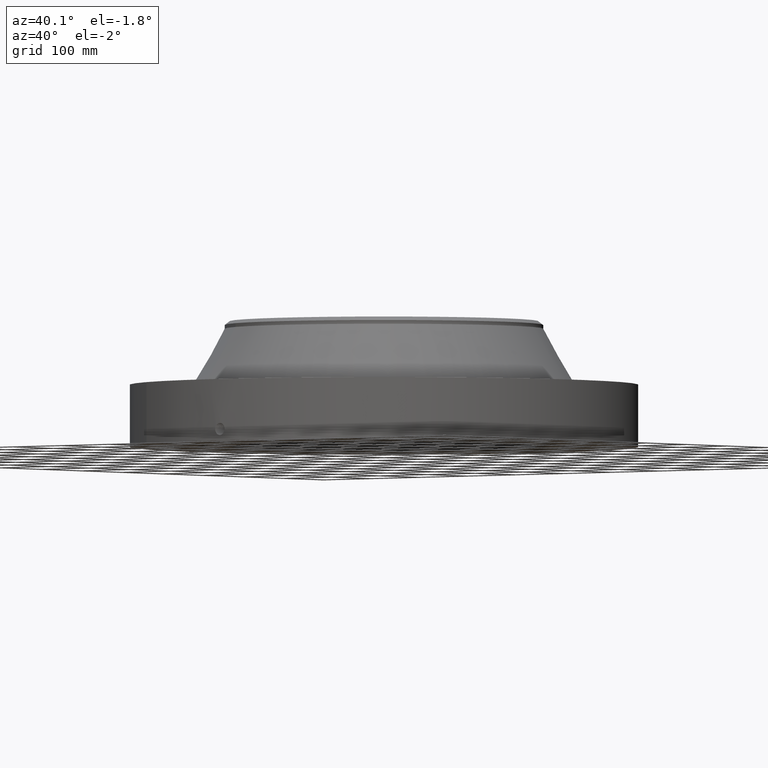
[diagram: clean part render]
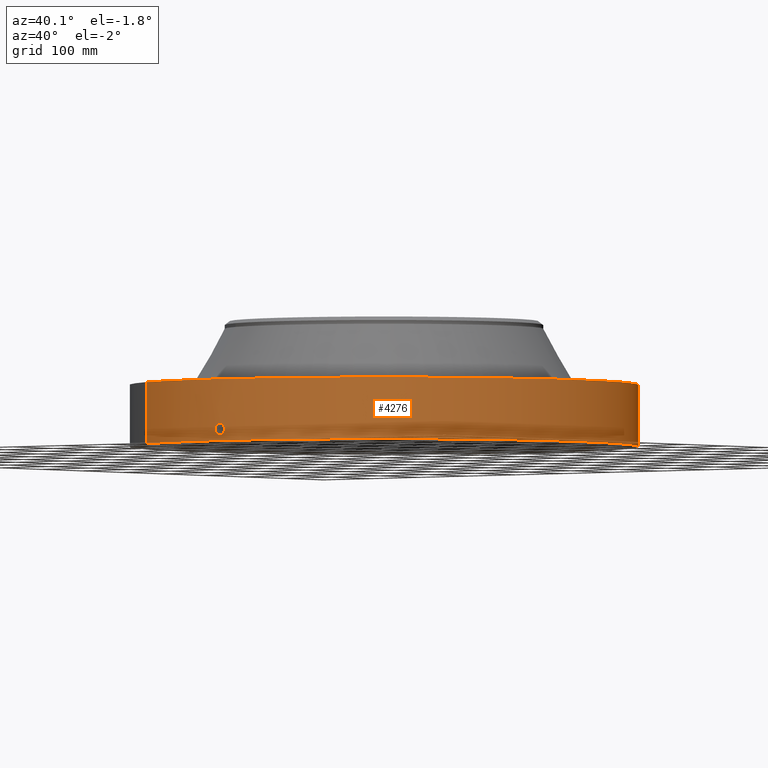
[diagram: same view with one face highlighted and labeled with its STEP entity id]
A machine part, auxiliary view. The second image highlights one B-rep face of the part: STEP entity #4276.
In plain terms, the highlighted cylindrical surface (partial cylindrical patch) has radius 406.4 mm, axis along (0, 0, -1).
Its self-contained STEP definition (entity closure, byte-faithful):
#2918=AXIS2_PLACEMENT_3D('Circle Axis2P3D',#2916,#2917,$) ;
#4063=AXIS2_PLACEMENT_3D('Cylinder Axis2P3D',#4060,#4061,#4062) ;
#4180=AXIS2_PLACEMENT_3D('Circle Axis2P3D',#4178,#4179,$) ;
#2916=CARTESIAN_POINT('Axis2P3D Location',(0.,0.,3.87500000002)) ;
#2920=CARTESIAN_POINT('Vertex',(7.6708086177,14.0413209903,3.87500000002)) ;
#2922=CARTESIAN_POINT('Vertex',(-7.6708086177,-14.0413209903,3.87500000002)) ;
#4060=CARTESIAN_POINT('Axis2P3D Location',(0.,0.,3.93750000002)) ;
#4069=CARTESIAN_POINT('Vertex',(-7.6708086177,-14.0413209903,2.23792987641E-015)) ;
#4071=CARTESIAN_POINT('Vertex',(7.6708086177,14.0413209903,2.23792987641E-015)) ;
#4074=CARTESIAN_POINT('Line Origine',(-7.6708086177,-14.0413209903,1.93750000001)) ;
#4079=CARTESIAN_POINT('Line Origine',(7.6708086177,14.0413209903,1.93750000001)) ;
#4178=CARTESIAN_POINT('Axis2P3D Location',(0.,0.,1.67844740731E-015)) ;
#4190=CARTESIAN_POINT('Control Point',(0.000716008386756,-15.999999984,1.10411846139)) ;
#4191=CARTESIAN_POINT('Control Point',(0.0189154325773,-15.9999991696,1.1040817082)) ;
#4192=CARTESIAN_POINT('Control Point',(0.0371116867376,-15.9999670598,1.10263811945)) ;
#4193=CARTESIAN_POINT('Control Point',(0.0550890318208,-15.9999051622,1.09980498088)) ;
#4194=CARTESIAN_POINT('Vertex',(0.000715672256007,-15.9999999841,1.10411851063)) ;
#4196=CARTESIAN_POINT('Vertex',(0.0550803065232,-15.999905444,1.09980637388)) ;
#4200=CARTESIAN_POINT('Control Point',(0.0550802118814,-15.9999051926,1.09980582858)) ;
#4201=CARTESIAN_POINT('Control Point',(0.0955969838568,-15.9997657123,1.09541327921)) ;
#4202=CARTESIAN_POINT('Control Point',(0.135483074496,-15.9994685863,1.0836543616)) ;
#4203=CARTESIAN_POINT('Control Point',(0.172232896312,-15.9990729679,1.0653007981)) ;
#4204=CARTESIAN_POINT('Vertex',(0.172232896312,-15.9990729679,1.0653007981)) ;
#4208=CARTESIAN_POINT('Control Point',(0.0310649567399,-15.9999698428,0.341193018259)) ;
#4209=CARTESIAN_POINT('Control Point',(0.0962765261338,-15.9998432304,0.349443757753)) ;
#4210=CARTESIAN_POINT('Control Point',(0.159435222181,-15.9993883715,0.371295261031)) ;
#4211=CARTESIAN_POINT('Control Point',(0.216604655264,-15.9986524433,0.406092532673)) ;
#4212=CARTESIAN_POINT('Control Point',(0.292161661445,-15.9973970214,0.477062027704)) ;
#4213=CARTESIAN_POINT('Control Point',(0.340748175169,-15.9963833302,0.56587920147)) ;
#4214=CARTESIAN_POINT('Control Point',(0.354565892993,-15.9960757286,0.600101801074)) ;
#4215=CARTESIAN_POINT('Control Point',(0.375131941602,-15.9956053363,0.675080916341)) ;
#4216=CARTESIAN_POINT('Control Point',(0.376942949484,-15.9955577989,0.752370184313)) ;
#4217=CARTESIAN_POINT('Control Point',(0.372580085671,-15.9956631169,0.792943340392)) ;
#4218=CARTESIAN_POINT('Control Point',(0.350060892727,-15.9961923171,0.885658348728)) ;
#4219=CARTESIAN_POINT('Control Point',(0.300399922066,-15.9972222194,0.967192321123)) ;
#4220=CARTESIAN_POINT('Control Point',(0.263624814501,-15.9979099405,1.00825222797)) ;
#4221=CARTESIAN_POINT('Control Point',(0.220118864215,-15.9985574668,1.04138562449)) ;
#4222=CARTESIAN_POINT('Control Point',(0.172232896312,-15.9990729679,1.0653007981)) ;
#4223=CARTESIAN_POINT('Vertex',(0.0310649567399,-15.9999698428,0.341193018259)) ;
#4227=CARTESIAN_POINT('Control Point',(0.0310649567399,-15.9999698428,0.341193018259)) ;
#4228=CARTESIAN_POINT('Control Point',(0.020705174629,-15.999989957,0.34087511048)) ;
#4229=CARTESIAN_POINT('Control Point',(0.0103376437744,-16.0000000018,0.340935838154)) ;
#4230=CARTESIAN_POINT('Control Point',(-2.72878353735E-006,-16.0000000001,0.341374667805)) ;
#4231=CARTESIAN_POINT('Vertex',(-2.7287835403E-006,-16.0000000001,0.341374667805)) ;
#4235=CARTESIAN_POINT('Control Point',(-0.19258388645,-15.9988409408,0.397488708576)) ;
#4236=CARTESIAN_POINT('Control Point',(-0.148989688923,-15.9993657001,0.372084856025)) ;
#4237=CARTESIAN_POINT('Control Point',(-0.101113495156,-15.9997843131,0.353795317005)) ;
#4238=CARTESIAN_POINT('Control Point',(-0.0508044904605,-15.9999999914,0.343530615092)) ;
#4239=CARTESIAN_POINT('Control Point',(-2.72878353735E-006,-16.0000000001,0.341374667805)) ;
#4240=CARTESIAN_POINT('Vertex',(-0.19258388645,-15.9988409408,0.397488708576)) ;
#4244=CARTESIAN_POINT('Control Point',(-0.19258388645,-15.9988409408,0.397488708576)) ;
#4245=CARTESIAN_POINT('Control Point',(-0.249383493254,-15.9981572232,0.43058780801)) ;
#4246=CARTESIAN_POINT('Control Point',(-0.299389171493,-15.9973031853,0.475008490983)) ;
#4247=CARTESIAN_POINT('Control Point',(-0.339452425822,-15.9964366393,0.529171991827)) ;
#4248=CARTESIAN_POINT('Control Point',(-0.383556873177,-15.9954112295,0.627406953986)) ;
#4249=CARTESIAN_POINT('Control Point',(-0.392034107974,-15.9951951608,0.732688685128)) ;
#4250=CARTESIAN_POINT('Control Point',(-0.389882999765,-15.9952493329,0.772870036997)) ;
#4251=CARTESIAN_POINT('Control Point',(-0.375666585558,-15.9956011091,0.84779269986)) ;
#4252=CARTESIAN_POINT('Control Point',(-0.343489946627,-15.9963246888,0.916234875648)) ;
#4253=CARTESIAN_POINT('Control Point',(-0.324394424015,-15.9967324358,0.946657276244)) ;
#4254=CARTESIAN_POINT('Control Point',(-0.26272103515,-15.9979362201,1.02288492987)) ;
#4255=CARTESIAN_POINT('Control Point',(-0.179727431083,-15.9991319704,1.0757336031)) ;
#4256=CARTESIAN_POINT('Control Point',(-0.121118275392,-15.99971795,1.09770166884)) ;
#4257=CARTESIAN_POINT('Control Point',(-0.0600802734337,-16.0000000972,1.10709991282)) ;
#4258=CARTESIAN_POINT('Control Point',(2.58579355453E-005,-16.,1.1041529843)) ;
#4259=CARTESIAN_POINT('Vertex',(2.58579355462E-005,-16.,1.1041529843)) ;
#4263=CARTESIAN_POINT('Control Point',(0.000715672246442,-15.9999999841,1.10411851061)) ;
#4264=CARTESIAN_POINT('Control Point',(0.000370789664225,-15.9999999995,1.10413607272)) ;
#4265=CARTESIAN_POINT('Control Point',(2.58579405307E-005,-16.,1.1041529843)) ;
#2917=DIRECTION('Axis2P3D Direction',(0.,0.,-0.0393700787402)) ;
#4061=DIRECTION('Axis2P3D Direction',(0.,0.,-0.0393700787402)) ;
#4062=DIRECTION('Axis2P3D XDirection',(0.0188750212049,0.0345504945626,0.)) ;
#4075=DIRECTION('Vector Direction',(0.,0.,-0.0393700787402)) ;
#4080=DIRECTION('Vector Direction',(0.,0.,-0.0393700787402)) ;
#4179=DIRECTION('Axis2P3D Direction',(0.,0.,-0.0393700787402)) ;
#4076=VECTOR('Line Direction',#4075,0.0393700787402) ;
#4081=VECTOR('Line Direction',#4080,0.0393700787402) ;
#4184=ORIENTED_EDGE('',*,*,#4182,.F.) ;
#4185=ORIENTED_EDGE('',*,*,#4083,.T.) ;
#4186=ORIENTED_EDGE('',*,*,#2924,.T.) ;
#4187=ORIENTED_EDGE('',*,*,#4078,.F.) ;
#4268=ORIENTED_EDGE('',*,*,#4198,.T.) ;
#4269=ORIENTED_EDGE('',*,*,#4206,.T.) ;
#4270=ORIENTED_EDGE('',*,*,#4225,.F.) ;
#4271=ORIENTED_EDGE('',*,*,#4233,.T.) ;
#4272=ORIENTED_EDGE('',*,*,#4242,.F.) ;
#4273=ORIENTED_EDGE('',*,*,#4261,.T.) ;
#4274=ORIENTED_EDGE('',*,*,#4266,.F.) ;
#4275=FACE_BOUND('',#4267,.T.) ;
#4276=ADVANCED_FACE('PartBody',(#4188,#4275),#4064,.T.) ;
#4189=B_SPLINE_CURVE_WITH_KNOTS('',3,(#4190,#4191,#4192,#4193),.UNSPECIFIED.,.F.,.U.,(4,4),(34.6166522529,36.6357054808),.UNSPECIFIED.) ;
#4199=B_SPLINE_CURVE_WITH_KNOTS('',3,(#4200,#4201,#4202,#4203),.UNSPECIFIED.,.F.,.U.,(4,4),(0.,4.57930786088),.UNSPECIFIED.) ;
#4207=B_SPLINE_CURVE_WITH_KNOTS('',5,(#4208,#4209,#4210,#4211,#4212,#4213,#4214,#4215,#4216,#4217,#4218,#4219,#4220,#4221,#4222),.UNSPECIFIED.,.F.,.U.,(6,3,3,3,6),(0.,11.4233522405,17.9912598419,25.3436101743,35.2885381945),.UNSPECIFIED.) ;
#4226=B_SPLINE_CURVE_WITH_KNOTS('',3,(#4227,#4228,#4229,#4230),.UNSPECIFIED.,.F.,.U.,(4,4),(0.,1.08068987329),.UNSPECIFIED.) ;
#4234=B_SPLINE_CURVE_WITH_KNOTS('',4,(#4235,#4236,#4237,#4238,#4239),.UNSPECIFIED.,.F.,.U.,(5,5),(0.,7.07917101218),.UNSPECIFIED.) ;
#4243=B_SPLINE_CURVE_WITH_KNOTS('',5,(#4244,#4245,#4246,#4247,#4248,#4249,#4250,#4251,#4252,#4253,#4254,#4255,#4256,#4257,#4258),.UNSPECIFIED.,.F.,.U.,(6,3,3,3,6),(0.,11.5294621014,18.6151346893,25.0414217822,36.2765053454),.UNSPECIFIED.) ;
#4262=B_SPLINE_CURVE_WITH_KNOTS('',2,(#4263,#4264,#4265),.UNSPECIFIED.,.F.,.U.,(3,3),(1.02033615425,1.04612611494),.UNSPECIFIED.) ;
#2919=CIRCLE('generated circle',#2918,16.0000000001) ;
#4181=CIRCLE('generated circle',#4180,16.0000000001) ;
#4064=CYLINDRICAL_SURFACE('generated cylinder',#4063,16.0000000001) ;
#2924=EDGE_CURVE('',#2921,#2923,#2919,.T.) ;
#4078=EDGE_CURVE('',#4070,#2923,#4077,.F.) ;
#4083=EDGE_CURVE('',#4072,#2921,#4082,.F.) ;
#4182=EDGE_CURVE('',#4072,#4070,#4181,.T.) ;
#4198=EDGE_CURVE('',#4195,#4197,#4189,.T.) ;
#4206=EDGE_CURVE('',#4197,#4205,#4199,.T.) ;
#4225=EDGE_CURVE('',#4224,#4205,#4207,.T.) ;
#4233=EDGE_CURVE('',#4224,#4232,#4226,.T.) ;
#4242=EDGE_CURVE('',#4241,#4232,#4234,.T.) ;
#4261=EDGE_CURVE('',#4241,#4260,#4243,.T.) ;
#4266=EDGE_CURVE('',#4195,#4260,#4262,.T.) ;
#4183=EDGE_LOOP('',(#4184,#4185,#4186,#4187)) ;
#4267=EDGE_LOOP('',(#4268,#4269,#4270,#4271,#4272,#4273,#4274)) ;
#4188=FACE_OUTER_BOUND('',#4183,.T.) ;
#4077=LINE('Line',#4074,#4076) ;
#4082=LINE('Line',#4079,#4081) ;
#2921=VERTEX_POINT('',#2920) ;
#2923=VERTEX_POINT('',#2922) ;
#4070=VERTEX_POINT('',#4069) ;
#4072=VERTEX_POINT('',#4071) ;
#4195=VERTEX_POINT('',#4194) ;
#4197=VERTEX_POINT('',#4196) ;
#4205=VERTEX_POINT('',#4204) ;
#4224=VERTEX_POINT('',#4223) ;
#4232=VERTEX_POINT('',#4231) ;
#4241=VERTEX_POINT('',#4240) ;
#4260=VERTEX_POINT('',#4259) ;